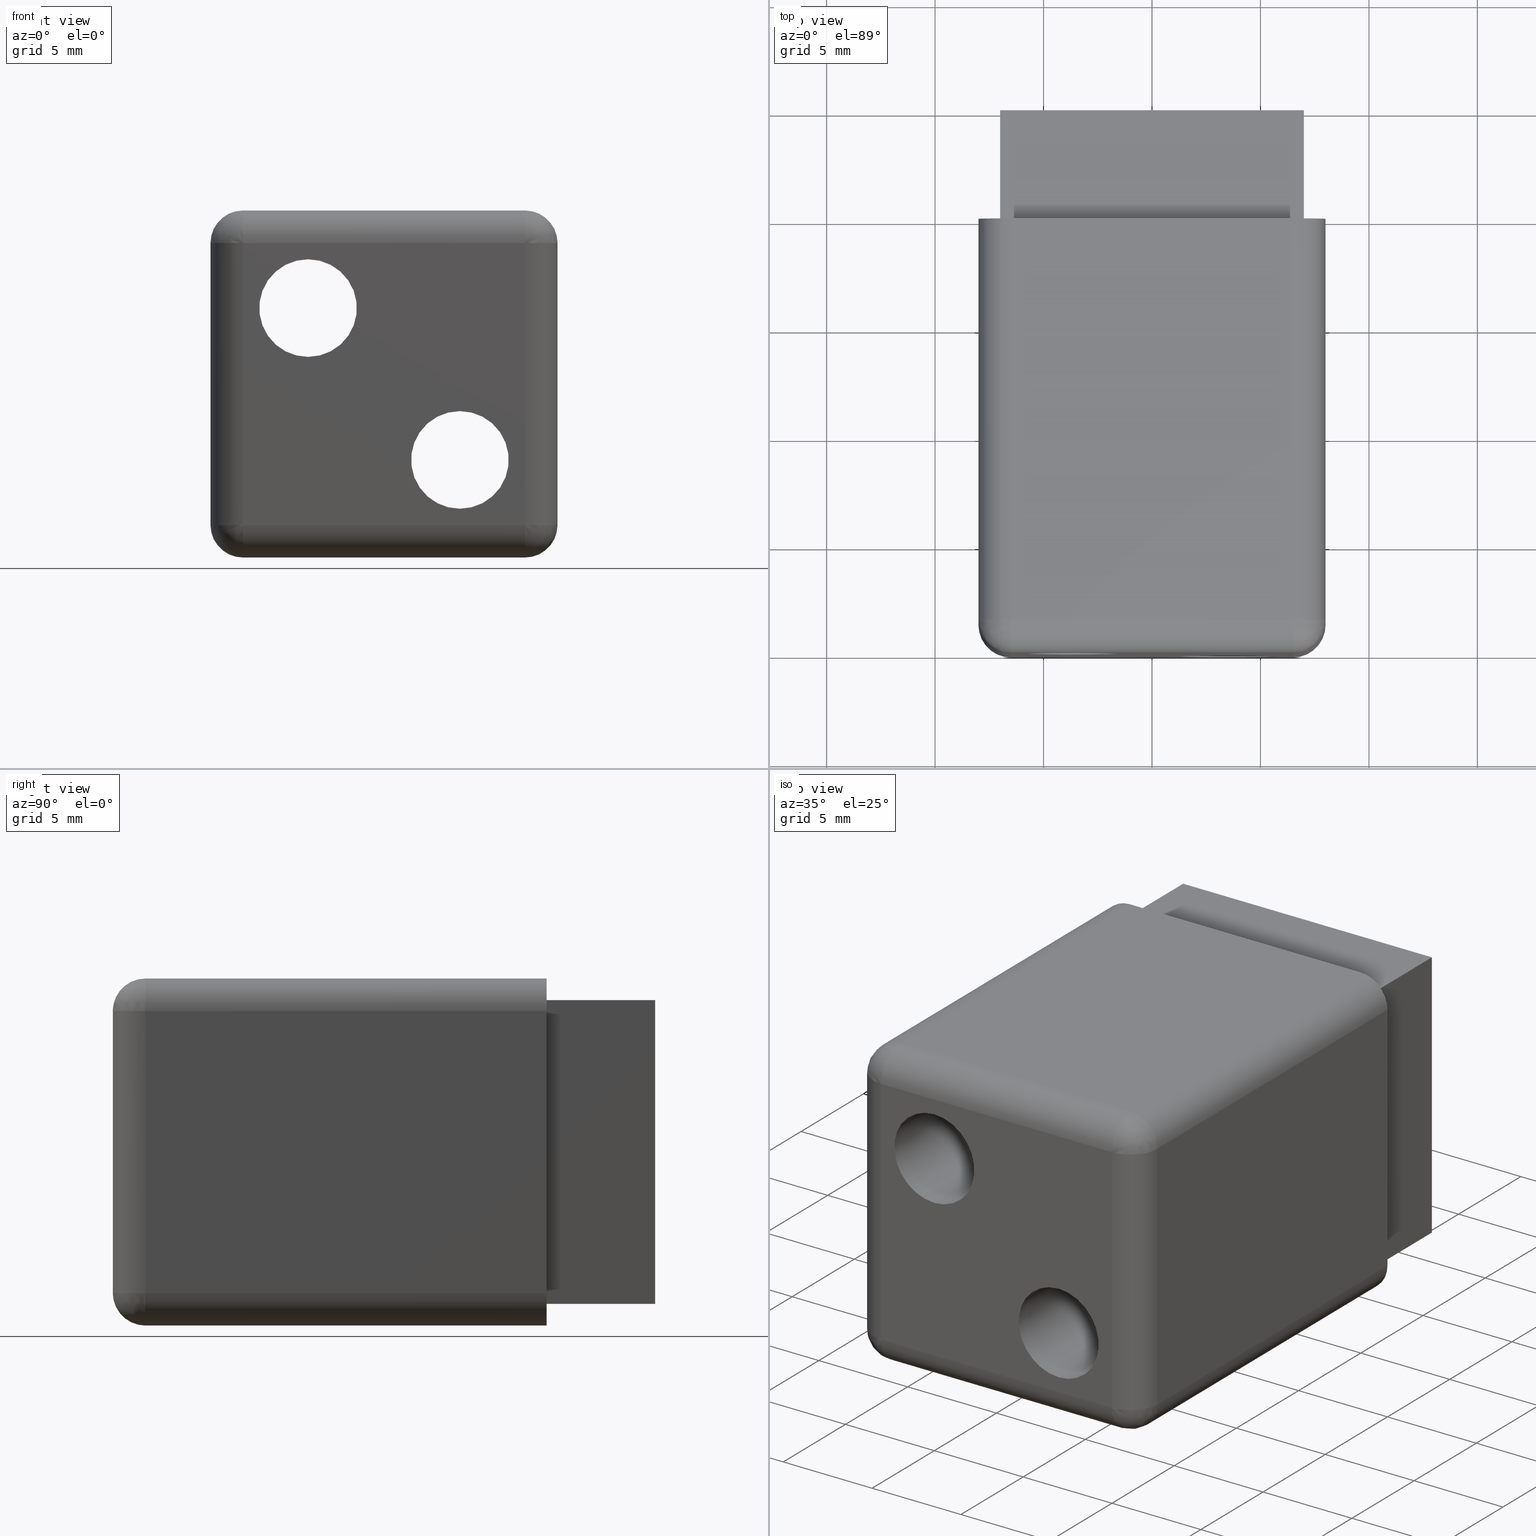
[diagram: canonical four-view strip — front | top / right | iso, engineering-drawing reading convention]
A machine part, canonical four-view strip (front | top / right | iso — engineering-drawing reading convention). The complete STEP part file that produces these views, byte-faithful:
ISO-10303-21;
HEADER;
/****************************************************************
 * Generated by software with PDE/Lib inside                    *
 * PDElib Version v4.4, created Mon 02/23/2004                  *
 * International Technegroup Inc. (www.iti-oh.com)              *
 ****************************************************************/
FILE_DESCRIPTION(('STEP AP203'),'2;1');
FILE_NAME('XF30001G.stp','2011-02-02T11:38:10',(''),(''),'2009.3.110','THINKDESIGN','');
FILE_SCHEMA(('CONFIG_CONTROL_DESIGN'));
ENDSEC;
DATA;
#2=CARTESIAN_POINT('',(3.500000000000004,1.999999990000001,3.499999999999999));
#3=DIRECTION('',(0.0,1.0,0.0));
#4=DIRECTION('',(1.0,0.0,0.0));
#5=AXIS2_PLACEMENT_3D('',#2,#3,#4);
#6=CYLINDRICAL_SURFACE('',#5,2.250000000000001);
#7=CARTESIAN_POINT('',(3.500000000000004,2.000000000000001,1.249999999999999));
#8=VERTEX_POINT('',#7);
#9=CARTESIAN_POINT('',(3.500000000000004,2.000000000000001,5.749999999999998));
#10=VERTEX_POINT('',#9);
#11=CARTESIAN_POINT('',(3.500000000000004,2.000000000000001,3.499999999999999));
#12=DIRECTION('',(0.0,1.0,0.0));
#13=DIRECTION('',(0.0,0.0,1.0));
#14=AXIS2_PLACEMENT_3D('',#11,#12,#13);
#15=CIRCLE('',#14,2.250000000000001);
#16=EDGE_CURVE('',#8,#10,#15,.T.);
#17=ORIENTED_EDGE('',*,*,#16,.F.);
#18=CARTESIAN_POINT('',(3.500000000000004,25.0,1.249999999999999));
#19=VERTEX_POINT('',#18);
#20=CARTESIAN_POINT('',(3.500000000000004,2.000000000000001,1.249999999999999));
#21=DIRECTION('',(0.0,1.0,0.0));
#22=VECTOR('',#21,23.0);
#23=LINE('',#20,#22);
#24=EDGE_CURVE('',#8,#19,#23,.T.);
#25=ORIENTED_EDGE('',*,*,#24,.T.);
#26=CARTESIAN_POINT('',(3.500000000000004,25.0,5.749999999999998));
#27=VERTEX_POINT('',#26);
#28=CARTESIAN_POINT('',(3.500000000000004,25.0,3.499999999999999));
#29=DIRECTION('',(0.0,1.0,0.0));
#30=DIRECTION('',(0.0,0.0,1.0));
#31=AXIS2_PLACEMENT_3D('',#28,#29,#30);
#32=CIRCLE('',#31,2.250000000000001);
#33=EDGE_CURVE('',#19,#27,#32,.T.);
#34=ORIENTED_EDGE('',*,*,#33,.T.);
#35=CARTESIAN_POINT('',(3.500000000000004,2.000000000000001,5.749999999999998));
#36=DIRECTION('',(0.0,1.0,0.0));
#37=VECTOR('',#36,23.0);
#38=LINE('',#35,#37);
#39=EDGE_CURVE('',#10,#27,#38,.T.);
#40=ORIENTED_EDGE('',*,*,#39,.F.);
#41=EDGE_LOOP('',(#17,#25,#34,#40));
#42=FACE_OUTER_BOUND('',#41,.T.);
#43=ADVANCED_FACE('',(#42),#6,.F.);
#44=CARTESIAN_POINT('',(-3.500000000000000,1.999999990000001,-3.500000000000002));
#45=DIRECTION('',(0.0,1.0,0.0));
#46=DIRECTION('',(1.0,0.0,0.0));
#47=AXIS2_PLACEMENT_3D('',#44,#45,#46);
#48=CYLINDRICAL_SURFACE('',#47,2.250000000000000);
#49=CARTESIAN_POINT('',(-3.500000000000000,2.000000000000001,-5.750000000000002));
#50=VERTEX_POINT('',#49);
#51=CARTESIAN_POINT('',(-3.500000000000000,2.000000000000001,-1.250000000000002));
#52=VERTEX_POINT('',#51);
#53=CARTESIAN_POINT('',(-3.500000000000000,2.000000000000001,-3.500000000000001));
#54=DIRECTION('',(0.0,1.0,0.0));
#55=DIRECTION('',(0.0,0.0,1.0));
#56=AXIS2_PLACEMENT_3D('',#53,#54,#55);
#57=CIRCLE('',#56,2.250000000000000);
#58=EDGE_CURVE('',#50,#52,#57,.T.);
#59=ORIENTED_EDGE('',*,*,#58,.F.);
#60=CARTESIAN_POINT('',(-3.500000000000000,25.0,-5.750000000000002));
#61=VERTEX_POINT('',#60);
#62=CARTESIAN_POINT('',(-3.500000000000000,2.000000000000001,-5.750000000000002));
#63=DIRECTION('',(0.0,1.0,0.0));
#64=VECTOR('',#63,23.0);
#65=LINE('',#62,#64);
#66=EDGE_CURVE('',#50,#61,#65,.T.);
#67=ORIENTED_EDGE('',*,*,#66,.T.);
#68=CARTESIAN_POINT('',(-3.500000000000000,25.0,-1.250000000000002));
#69=VERTEX_POINT('',#68);
#70=CARTESIAN_POINT('',(-3.500000000000000,25.0,-3.500000000000001));
#71=DIRECTION('',(0.0,1.0,0.0));
#72=DIRECTION('',(0.0,0.0,1.0));
#73=AXIS2_PLACEMENT_3D('',#70,#71,#72);
#74=CIRCLE('',#73,2.250000000000000);
#75=EDGE_CURVE('',#61,#69,#74,.T.);
#76=ORIENTED_EDGE('',*,*,#75,.T.);
#77=CARTESIAN_POINT('',(-3.500000000000000,2.000000000000001,-1.250000000000002));
#78=DIRECTION('',(0.0,1.0,0.0));
#79=VECTOR('',#78,23.0);
#80=LINE('',#77,#79);
#81=EDGE_CURVE('',#52,#69,#80,.T.);
#82=ORIENTED_EDGE('',*,*,#81,.F.);
#83=EDGE_LOOP('',(#59,#67,#76,#82));
#84=FACE_OUTER_BOUND('',#83,.T.);
#85=ADVANCED_FACE('',(#84),#48,.F.);
#86=CARTESIAN_POINT('',(3.500000000000002,25.000000010000001,-3.500000000000001));
#87=DIRECTION('',(0.0,-1.0,0.0));
#88=DIRECTION('',(1.0,0.0,0.0));
#89=AXIS2_PLACEMENT_3D('',#86,#87,#88);
#90=CYLINDRICAL_SURFACE('',#89,2.250000000000001);
#91=CARTESIAN_POINT('',(3.500000000000002,25.0,-1.250000000000001));
#92=VERTEX_POINT('',#91);
#93=CARTESIAN_POINT('',(3.500000000000002,25.0,-5.750000000000002));
#94=VERTEX_POINT('',#93);
#95=CARTESIAN_POINT('',(3.500000000000002,25.0,-3.500000000000001));
#96=DIRECTION('',(0.0,-1.0,0.0));
#97=DIRECTION('',(0.0,0.0,-1.0));
#98=AXIS2_PLACEMENT_3D('',#95,#96,#97);
#99=CIRCLE('',#98,2.250000000000001);
#100=EDGE_CURVE('',#92,#94,#99,.T.);
#101=ORIENTED_EDGE('',*,*,#100,.F.);
#102=CARTESIAN_POINT('',(3.500000000000002,0.0,-1.250000000000001));
#103=VERTEX_POINT('',#102);
#104=CARTESIAN_POINT('',(3.500000000000002,25.0,-1.250000000000001));
#105=DIRECTION('',(0.0,-1.0,0.0));
#106=VECTOR('',#105,25.0);
#107=LINE('',#104,#106);
#108=EDGE_CURVE('',#92,#103,#107,.T.);
#109=ORIENTED_EDGE('',*,*,#108,.T.);
#110=CARTESIAN_POINT('',(3.500000000000002,0.0,-5.750000000000002));
#111=VERTEX_POINT('',#110);
#112=CARTESIAN_POINT('',(3.500000000000002,0.0,-3.500000000000001));
#113=DIRECTION('',(0.0,-1.0,0.0));
#114=DIRECTION('',(0.0,0.0,-1.0));
#115=AXIS2_PLACEMENT_3D('',#112,#113,#114);
#116=CIRCLE('',#115,2.250000000000001);
#117=EDGE_CURVE('',#103,#111,#116,.T.);
#118=ORIENTED_EDGE('',*,*,#117,.T.);
#119=CARTESIAN_POINT('',(3.500000000000002,25.0,-5.750000000000002));
#120=DIRECTION('',(0.0,-1.0,0.0));
#121=VECTOR('',#120,25.0);
#122=LINE('',#119,#121);
#123=EDGE_CURVE('',#94,#111,#122,.T.);
#124=ORIENTED_EDGE('',*,*,#123,.F.);
#125=EDGE_LOOP('',(#101,#109,#118,#124));
#126=FACE_OUTER_BOUND('',#125,.T.);
#127=ADVANCED_FACE('',(#126),#90,.F.);
#128=CARTESIAN_POINT('',(-3.499999999999997,25.000000010000001,3.499999999999999));
#129=DIRECTION('',(0.0,-1.0,0.0));
#130=DIRECTION('',(1.0,0.0,0.0));
#131=AXIS2_PLACEMENT_3D('',#128,#129,#130);
#132=CYLINDRICAL_SURFACE('',#131,2.250000000000000);
#133=CARTESIAN_POINT('',(-3.499999999999996,25.0,5.749999999999998));
#134=VERTEX_POINT('',#133);
#135=CARTESIAN_POINT('',(-3.499999999999997,25.0,1.249999999999999));
#136=VERTEX_POINT('',#135);
#137=CARTESIAN_POINT('',(-3.499999999999997,25.0,3.499999999999999));
#138=DIRECTION('',(0.0,-1.0,0.0));
#139=DIRECTION('',(0.0,0.0,-1.0));
#140=AXIS2_PLACEMENT_3D('',#137,#138,#139);
#141=CIRCLE('',#140,2.250000000000000);
#142=EDGE_CURVE('',#134,#136,#141,.T.);
#143=ORIENTED_EDGE('',*,*,#142,.F.);
#144=CARTESIAN_POINT('',(-3.499999999999996,0.0,5.749999999999998));
#145=VERTEX_POINT('',#144);
#146=CARTESIAN_POINT('',(-3.499999999999996,25.0,5.749999999999998));
#147=DIRECTION('',(0.0,-1.0,0.0));
#148=VECTOR('',#147,25.0);
#149=LINE('',#146,#148);
#150=EDGE_CURVE('',#134,#145,#149,.T.);
#151=ORIENTED_EDGE('',*,*,#150,.T.);
#152=CARTESIAN_POINT('',(-3.499999999999997,0.0,1.249999999999999));
#153=VERTEX_POINT('',#152);
#154=CARTESIAN_POINT('',(-3.499999999999997,0.0,3.499999999999999));
#155=DIRECTION('',(0.0,-1.0,0.0));
#156=DIRECTION('',(0.0,0.0,-1.0));
#157=AXIS2_PLACEMENT_3D('',#154,#155,#156);
#158=CIRCLE('',#157,2.250000000000000);
#159=EDGE_CURVE('',#145,#153,#158,.T.);
#160=ORIENTED_EDGE('',*,*,#159,.T.);
#161=CARTESIAN_POINT('',(-3.499999999999997,25.0,1.249999999999999));
#162=DIRECTION('',(0.0,-1.0,0.0));
#163=VECTOR('',#162,25.0);
#164=LINE('',#161,#163);
#165=EDGE_CURVE('',#136,#153,#164,.T.);
#166=ORIENTED_EDGE('',*,*,#165,.F.);
#167=EDGE_LOOP('',(#143,#151,#160,#166));
#168=FACE_OUTER_BOUND('',#167,.T.);
#169=ADVANCED_FACE('',(#168),#132,.F.);
#170=CARTESIAN_POINT('',(8.000000000000004,0.574999999999999,-7.150000000000004));
#171=DIRECTION('',(-1.0,0.0,0.0));
#172=DIRECTION('',(0.0,0.0,1.0));
#173=AXIS2_PLACEMENT_3D('',#170,#171,#172);
#174=PLANE('',#173);
#175=CARTESIAN_POINT('',(8.000000000000004,1.500000000000001,6.499999999999997));
#176=VERTEX_POINT('',#175);
#177=CARTESIAN_POINT('',(8.000000000000004,1.500000000000001,-6.500000000000003));
#178=VERTEX_POINT('',#177);
#179=CARTESIAN_POINT('',(8.000000000000004,1.500000000000001,6.499999999999996));
#180=DIRECTION('',(0.0,0.0,-1.0));
#181=VECTOR('',#180,13.0);
#182=LINE('',#179,#181);
#183=EDGE_CURVE('',#176,#178,#182,.T.);
#184=ORIENTED_EDGE('',*,*,#183,.T.);
#185=CARTESIAN_POINT('',(8.000000000000004,20.0,-6.500000000000003));
#186=VERTEX_POINT('',#185);
#187=CARTESIAN_POINT('',(8.000000000000004,1.500000000000000,-6.500000000000003));
#188=DIRECTION('',(0.0,1.0,0.0));
#189=VECTOR('',#188,18.500000000000000);
#190=LINE('',#187,#189);
#191=EDGE_CURVE('',#178,#186,#190,.T.);
#192=ORIENTED_EDGE('',*,*,#191,.T.);
#193=CARTESIAN_POINT('',(8.000000000000004,20.0,6.499999999999997));
#194=VERTEX_POINT('',#193);
#195=CARTESIAN_POINT('',(8.000000000000004,20.0,6.499999999999996));
#196=DIRECTION('',(0.0,0.0,-1.0));
#197=VECTOR('',#196,13.0);
#198=LINE('',#195,#197);
#199=EDGE_CURVE('',#194,#186,#198,.T.);
#200=ORIENTED_EDGE('',*,*,#199,.F.);
#201=CARTESIAN_POINT('',(8.000000000000004,20.0,6.499999999999997));
#202=DIRECTION('',(0.0,-1.0,0.0));
#203=VECTOR('',#202,18.500000000000000);
#204=LINE('',#201,#203);
#205=EDGE_CURVE('',#194,#176,#204,.T.);
#206=ORIENTED_EDGE('',*,*,#205,.T.);
#207=EDGE_LOOP('',(#184,#192,#200,#206));
#208=FACE_OUTER_BOUND('',#207,.T.);
#209=ADVANCED_FACE('',(#208),#174,.F.);
#210=CARTESIAN_POINT('',(-7.150000000000006,0.574999999999999,-8.000000000000004));
#211=DIRECTION('',(0.0,0.0,1.0));
#212=DIRECTION('',(1.0,0.0,0.0));
#213=AXIS2_PLACEMENT_3D('',#210,#211,#212);
#214=PLANE('',#213);
#215=CARTESIAN_POINT('',(6.500000000000003,20.0,-8.000000000000004));
#216=VERTEX_POINT('',#215);
#217=CARTESIAN_POINT('',(-6.500000000000003,20.0,-8.000000000000004));
#218=VERTEX_POINT('',#217);
#219=CARTESIAN_POINT('',(6.500000000000004,20.0,-8.000000000000004));
#220=DIRECTION('',(-1.0,0.0,0.0));
#221=VECTOR('',#220,13.000000000000009);
#222=LINE('',#219,#221);
#223=EDGE_CURVE('',#216,#218,#222,.T.);
#224=ORIENTED_EDGE('',*,*,#223,.F.);
#225=CARTESIAN_POINT('',(6.500000000000003,1.500000000000001,-8.000000000000004));
#226=VERTEX_POINT('',#225);
#227=CARTESIAN_POINT('',(6.500000000000003,20.0,-8.000000000000004));
#228=DIRECTION('',(0.0,-1.0,0.0));
#229=VECTOR('',#228,18.500000000000000);
#230=LINE('',#227,#229);
#231=EDGE_CURVE('',#216,#226,#230,.T.);
#232=ORIENTED_EDGE('',*,*,#231,.T.);
#233=CARTESIAN_POINT('',(-6.500000000000003,1.500000000000001,-8.000000000000004));
#234=VERTEX_POINT('',#233);
#235=CARTESIAN_POINT('',(6.500000000000004,1.500000000000001,-8.000000000000004));
#236=DIRECTION('',(-1.0,0.0,0.0));
#237=VECTOR('',#236,13.000000000000009);
#238=LINE('',#235,#237);
#239=EDGE_CURVE('',#226,#234,#238,.T.);
#240=ORIENTED_EDGE('',*,*,#239,.T.);
#241=CARTESIAN_POINT('',(-6.500000000000003,1.500000000000000,-8.000000000000004));
#242=DIRECTION('',(0.0,1.0,0.0));
#243=VECTOR('',#242,18.500000000000000);
#244=LINE('',#241,#243);
#245=EDGE_CURVE('',#234,#218,#244,.T.);
#246=ORIENTED_EDGE('',*,*,#245,.T.);
#247=EDGE_LOOP('',(#224,#232,#240,#246));
#248=FACE_OUTER_BOUND('',#247,.T.);
#249=ADVANCED_FACE('',(#248),#214,.F.);
#250=CARTESIAN_POINT('',(-8.0,0.574999999999999,7.149999999999997));
#251=DIRECTION('',(1.0,0.0,0.0));
#252=DIRECTION('',(0.0,0.0,-1.0));
#253=AXIS2_PLACEMENT_3D('',#250,#251,#252);
#254=PLANE('',#253);
#255=CARTESIAN_POINT('',(-8.0,20.0,-6.500000000000003));
#256=VERTEX_POINT('',#255);
#257=CARTESIAN_POINT('',(-7.999999999999997,20.0,6.499999999999997));
#258=VERTEX_POINT('',#257);
#259=CARTESIAN_POINT('',(-8.0,20.0,-6.500000000000003));
#260=DIRECTION('',(0.0,0.0,1.0));
#261=VECTOR('',#260,13.0);
#262=LINE('',#259,#261);
#263=EDGE_CURVE('',#256,#258,#262,.T.);
#264=ORIENTED_EDGE('',*,*,#263,.F.);
#265=CARTESIAN_POINT('',(-8.0,1.500000000000001,-6.500000000000003));
#266=VERTEX_POINT('',#265);
#267=CARTESIAN_POINT('',(-8.0,20.0,-6.500000000000003));
#268=DIRECTION('',(0.0,-1.0,0.0));
#269=VECTOR('',#268,18.500000000000000);
#270=LINE('',#267,#269);
#271=EDGE_CURVE('',#256,#266,#270,.T.);
#272=ORIENTED_EDGE('',*,*,#271,.T.);
#273=CARTESIAN_POINT('',(-7.999999999999997,1.500000000000001,6.499999999999997));
#274=VERTEX_POINT('',#273);
#275=CARTESIAN_POINT('',(-8.0,1.500000000000001,-6.500000000000003));
#276=DIRECTION('',(0.0,0.0,1.0));
#277=VECTOR('',#276,13.0);
#278=LINE('',#275,#277);
#279=EDGE_CURVE('',#266,#274,#278,.T.);
#280=ORIENTED_EDGE('',*,*,#279,.T.);
#281=CARTESIAN_POINT('',(-7.999999999999997,1.500000000000000,6.499999999999997));
#282=DIRECTION('',(0.0,1.0,0.0));
#283=VECTOR('',#282,18.500000000000000);
#284=LINE('',#281,#283);
#285=EDGE_CURVE('',#274,#258,#284,.T.);
#286=ORIENTED_EDGE('',*,*,#285,.T.);
#287=EDGE_LOOP('',(#264,#272,#280,#286));
#288=FACE_OUTER_BOUND('',#287,.T.);
#289=ADVANCED_FACE('',(#288),#254,.F.);
#290=CARTESIAN_POINT('',(7.150000000000005,0.574999999999999,7.999999999999997));
#291=DIRECTION('',(0.0,0.0,-1.0));
#292=DIRECTION('',(-1.0,0.0,0.0));
#293=AXIS2_PLACEMENT_3D('',#290,#291,#292);
#294=PLANE('',#293);
#295=CARTESIAN_POINT('',(-6.499999999999997,20.0,7.999999999999997));
#296=VERTEX_POINT('',#295);
#297=CARTESIAN_POINT('',(6.500000000000004,20.0,7.999999999999997));
#298=VERTEX_POINT('',#297);
#299=CARTESIAN_POINT('',(-6.499999999999997,20.0,7.999999999999997));
#300=DIRECTION('',(1.0,0.0,0.0));
#301=VECTOR('',#300,13.000000000000002);
#302=LINE('',#299,#301);
#303=EDGE_CURVE('',#296,#298,#302,.T.);
#304=ORIENTED_EDGE('',*,*,#303,.F.);
#305=CARTESIAN_POINT('',(-6.499999999999997,1.500000000000001,7.999999999999997));
#306=VERTEX_POINT('',#305);
#307=CARTESIAN_POINT('',(-6.499999999999997,20.0,7.999999999999997));
#308=DIRECTION('',(0.0,-1.0,0.0));
#309=VECTOR('',#308,18.500000000000000);
#310=LINE('',#307,#309);
#311=EDGE_CURVE('',#296,#306,#310,.T.);
#312=ORIENTED_EDGE('',*,*,#311,.T.);
#313=CARTESIAN_POINT('',(6.500000000000004,1.500000000000001,7.999999999999997));
#314=VERTEX_POINT('',#313);
#315=CARTESIAN_POINT('',(-6.499999999999997,1.500000000000001,7.999999999999997));
#316=DIRECTION('',(1.0,0.0,0.0));
#317=VECTOR('',#316,13.000000000000002);
#318=LINE('',#315,#317);
#319=EDGE_CURVE('',#306,#314,#318,.T.);
#320=ORIENTED_EDGE('',*,*,#319,.T.);
#321=CARTESIAN_POINT('',(6.500000000000004,1.500000000000000,7.999999999999997));
#322=DIRECTION('',(0.0,1.0,0.0));
#323=VECTOR('',#322,18.500000000000000);
#324=LINE('',#321,#323);
#325=EDGE_CURVE('',#314,#298,#324,.T.);
#326=ORIENTED_EDGE('',*,*,#325,.T.);
#327=EDGE_LOOP('',(#304,#312,#320,#326));
#328=FACE_OUTER_BOUND('',#327,.T.);
#329=ADVANCED_FACE('',(#328),#294,.F.);
#330=CARTESIAN_POINT('',(-7.150000000000004,0.0,-7.150000000000003));
#331=DIRECTION('',(0.0,1.0,0.0));
#332=DIRECTION('',(0.0,0.0,1.0));
#333=AXIS2_PLACEMENT_3D('',#330,#331,#332);
#334=PLANE('',#333);
#335=CARTESIAN_POINT('',(-6.499999999999997,3.330669E-016,6.499999999999997));
#336=VERTEX_POINT('',#335);
#337=CARTESIAN_POINT('',(-6.500000000000001,3.330669E-016,-6.500000000000003));
#338=VERTEX_POINT('',#337);
#339=CARTESIAN_POINT('',(-6.499999999999997,0.0,6.499999999999997));
#340=DIRECTION('',(0.0,0.0,-1.0));
#341=VECTOR('',#340,13.0);
#342=LINE('',#339,#341);
#343=EDGE_CURVE('',#336,#338,#342,.T.);
#344=ORIENTED_EDGE('',*,*,#343,.T.);
#345=CARTESIAN_POINT('',(6.500000000000004,3.330669E-016,-6.500000000000003));
#346=VERTEX_POINT('',#345);
#347=CARTESIAN_POINT('',(-6.500000000000004,0.0,-6.500000000000003));
#348=DIRECTION('',(1.0,0.0,0.0));
#349=VECTOR('',#348,13.000000000000009);
#350=LINE('',#347,#349);
#351=EDGE_CURVE('',#338,#346,#350,.T.);
#352=ORIENTED_EDGE('',*,*,#351,.T.);
#353=CARTESIAN_POINT('',(6.500000000000004,3.330669E-016,6.499999999999997));
#354=VERTEX_POINT('',#353);
#355=CARTESIAN_POINT('',(6.500000000000004,0.0,-6.500000000000003));
#356=DIRECTION('',(0.0,0.0,1.0));
#357=VECTOR('',#356,13.0);
#358=LINE('',#355,#357);
#359=EDGE_CURVE('',#346,#354,#358,.T.);
#360=ORIENTED_EDGE('',*,*,#359,.T.);
#361=CARTESIAN_POINT('',(6.500000000000004,0.0,6.499999999999997));
#362=DIRECTION('',(-1.0,0.0,0.0));
#363=VECTOR('',#362,13.000000000000002);
#364=LINE('',#361,#363);
#365=EDGE_CURVE('',#354,#336,#364,.T.);
#366=ORIENTED_EDGE('',*,*,#365,.T.);
#367=EDGE_LOOP('',(#344,#352,#360,#366));
#368=FACE_OUTER_BOUND('',#367,.T.);
#369=CARTESIAN_POINT('',(3.500000000000002,0.0,-3.500000000000001));
#370=DIRECTION('',(0.0,-1.0,0.0));
#371=DIRECTION('',(0.0,0.0,-1.0));
#372=AXIS2_PLACEMENT_3D('',#369,#370,#371);
#373=CIRCLE('',#372,2.250000000000001);
#374=EDGE_CURVE('',#111,#103,#373,.T.);
#375=ORIENTED_EDGE('',*,*,#374,.F.);
#376=ORIENTED_EDGE('',*,*,#117,.F.);
#377=EDGE_LOOP('',(#375,#376));
#378=FACE_BOUND('',#377,.T.);
#379=CARTESIAN_POINT('',(-3.499999999999997,0.0,3.499999999999999));
#380=DIRECTION('',(0.0,-1.0,0.0));
#381=DIRECTION('',(0.0,0.0,-1.0));
#382=AXIS2_PLACEMENT_3D('',#379,#380,#381);
#383=CIRCLE('',#382,2.250000000000000);
#384=EDGE_CURVE('',#153,#145,#383,.T.);
#385=ORIENTED_EDGE('',*,*,#384,.F.);
#386=ORIENTED_EDGE('',*,*,#159,.F.);
#387=EDGE_LOOP('',(#385,#386));
#388=FACE_BOUND('',#387,.T.);
#389=ADVANCED_FACE('',(#368,#378,#388),#334,.F.);
#390=CARTESIAN_POINT('',(-8.800000000000001,20.0,-8.800000000000004));
#391=DIRECTION('',(0.0,1.0,0.0));
#392=DIRECTION('',(0.0,0.0,1.0));
#393=AXIS2_PLACEMENT_3D('',#390,#391,#392);
#394=PLANE('',#393);
#395=ORIENTED_EDGE('',*,*,#199,.T.);
#396=CARTESIAN_POINT('',(6.500000000000003,20.0,-6.500000000000003));
#397=DIRECTION('',(0.0,1.0,0.0));
#398=DIRECTION('',(0.0,0.0,1.0));
#399=AXIS2_PLACEMENT_3D('',#396,#397,#398);
#400=CIRCLE('',#399,1.500000000000000);
#401=EDGE_CURVE('',#186,#216,#400,.T.);
#402=ORIENTED_EDGE('',*,*,#401,.T.);
#403=ORIENTED_EDGE('',*,*,#223,.T.);
#404=CARTESIAN_POINT('',(-6.500000000000003,20.0,-6.500000000000003));
#405=DIRECTION('',(0.0,1.0,0.0));
#406=DIRECTION('',(0.0,0.0,1.0));
#407=AXIS2_PLACEMENT_3D('',#404,#405,#406);
#408=CIRCLE('',#407,1.500000000000000);
#409=EDGE_CURVE('',#218,#256,#408,.T.);
#410=ORIENTED_EDGE('',*,*,#409,.T.);
#411=ORIENTED_EDGE('',*,*,#263,.T.);
#412=CARTESIAN_POINT('',(-6.499999999999997,20.0,6.499999999999997));
#413=DIRECTION('',(0.0,1.0,0.0));
#414=DIRECTION('',(0.0,0.0,1.0));
#415=AXIS2_PLACEMENT_3D('',#412,#413,#414);
#416=CIRCLE('',#415,1.500000000000000);
#417=EDGE_CURVE('',#258,#296,#416,.T.);
#418=ORIENTED_EDGE('',*,*,#417,.T.);
#419=ORIENTED_EDGE('',*,*,#303,.T.);
#420=CARTESIAN_POINT('',(6.500000000000004,20.0,6.499999999999997));
#421=DIRECTION('',(0.0,1.0,0.0));
#422=DIRECTION('',(0.0,0.0,1.0));
#423=AXIS2_PLACEMENT_3D('',#420,#421,#422);
#424=CIRCLE('',#423,1.500000000000000);
#425=EDGE_CURVE('',#298,#194,#424,.T.);
#426=ORIENTED_EDGE('',*,*,#425,.T.);
#427=EDGE_LOOP('',(#395,#402,#403,#410,#411,#418,#419,#426));
#428=FACE_OUTER_BOUND('',#427,.T.);
#429=CARTESIAN_POINT('',(-7.0,20.0,-7.000000000000003));
#430=VERTEX_POINT('',#429);
#431=CARTESIAN_POINT('',(-6.999999999999997,20.0,6.999999999999997));
#432=VERTEX_POINT('',#431);
#433=CARTESIAN_POINT('',(-7.0,20.0,-7.000000000000003));
#434=DIRECTION('',(0.0,0.0,1.0));
#435=VECTOR('',#434,14.0);
#436=LINE('',#433,#435);
#437=EDGE_CURVE('',#430,#432,#436,.T.);
#438=ORIENTED_EDGE('',*,*,#437,.F.);
#439=CARTESIAN_POINT('',(7.000000000000003,20.0,-6.999999999999997));
#440=VERTEX_POINT('',#439);
#441=CARTESIAN_POINT('',(7.000000000000003,20.0,-7.000000000000003));
#442=DIRECTION('',(-1.0,0.0,0.0));
#443=VECTOR('',#442,14.000000000000004);
#444=LINE('',#441,#443);
#445=EDGE_CURVE('',#440,#430,#444,.T.);
#446=ORIENTED_EDGE('',*,*,#445,.F.);
#447=CARTESIAN_POINT('',(7.000000000000003,20.0,6.999999999999997));
#448=VERTEX_POINT('',#447);
#449=CARTESIAN_POINT('',(7.000000000000003,20.0,6.999999999999997));
#450=DIRECTION('',(0.0,0.0,-1.0));
#451=VECTOR('',#450,13.999999999999995);
#452=LINE('',#449,#451);
#453=EDGE_CURVE('',#448,#440,#452,.T.);
#454=ORIENTED_EDGE('',*,*,#453,.F.);
#455=CARTESIAN_POINT('',(-6.999999999999997,20.0,6.999999999999997));
#456=DIRECTION('',(1.0,0.0,0.0));
#457=VECTOR('',#456,14.0);
#458=LINE('',#455,#457);
#459=EDGE_CURVE('',#432,#448,#458,.T.);
#460=ORIENTED_EDGE('',*,*,#459,.F.);
#461=EDGE_LOOP('',(#438,#446,#454,#460));
#462=FACE_BOUND('',#461,.T.);
#463=ADVANCED_FACE('',(#428,#462),#394,.T.);
#464=CARTESIAN_POINT('',(-7.699999999999998,19.750000000000000,6.999999999999997));
#465=DIRECTION('',(0.0,0.0,1.0));
#466=DIRECTION('',(1.0,0.0,0.0));
#467=AXIS2_PLACEMENT_3D('',#464,#465,#466);
#468=PLANE('',#467);
#469=CARTESIAN_POINT('',(-6.999999999999997,25.0,6.999999999999997));
#470=VERTEX_POINT('',#469);
#471=CARTESIAN_POINT('',(7.000000000000003,25.0,6.999999999999997));
#472=VERTEX_POINT('',#471);
#473=CARTESIAN_POINT('',(-6.999999999999997,25.0,6.999999999999997));
#474=DIRECTION('',(1.0,0.0,0.0));
#475=VECTOR('',#474,14.0);
#476=LINE('',#473,#475);
#477=EDGE_CURVE('',#470,#472,#476,.T.);
#478=ORIENTED_EDGE('',*,*,#477,.F.);
#479=CARTESIAN_POINT('',(-6.999999999999997,20.0,6.999999999999997));
#480=DIRECTION('',(0.0,1.0,0.0));
#481=VECTOR('',#480,5.0);
#482=LINE('',#479,#481);
#483=EDGE_CURVE('',#432,#470,#482,.T.);
#484=ORIENTED_EDGE('',*,*,#483,.F.);
#485=ORIENTED_EDGE('',*,*,#459,.T.);
#486=CARTESIAN_POINT('',(7.000000000000003,20.0,6.999999999999997));
#487=DIRECTION('',(0.0,1.0,0.0));
#488=VECTOR('',#487,5.0);
#489=LINE('',#486,#488);
#490=EDGE_CURVE('',#448,#472,#489,.T.);
#491=ORIENTED_EDGE('',*,*,#490,.T.);
#492=EDGE_LOOP('',(#478,#484,#485,#491));
#493=FACE_OUTER_BOUND('',#492,.T.);
#494=ADVANCED_FACE('',(#493),#468,.T.);
#495=CARTESIAN_POINT('',(-7.0,19.750000000000000,-7.700000000000003));
#496=DIRECTION('',(-1.0,0.0,0.0));
#497=DIRECTION('',(0.0,0.0,1.0));
#498=AXIS2_PLACEMENT_3D('',#495,#496,#497);
#499=PLANE('',#498);
#500=CARTESIAN_POINT('',(-7.0,25.0,-7.000000000000003));
#501=VERTEX_POINT('',#500);
#502=CARTESIAN_POINT('',(-7.0,25.0,-7.000000000000003));
#503=DIRECTION('',(0.0,0.0,1.0));
#504=VECTOR('',#503,14.0);
#505=LINE('',#502,#504);
#506=EDGE_CURVE('',#501,#470,#505,.T.);
#507=ORIENTED_EDGE('',*,*,#506,.F.);
#508=CARTESIAN_POINT('',(-7.0,20.0,-7.000000000000003));
#509=DIRECTION('',(0.0,1.0,0.0));
#510=VECTOR('',#509,5.0);
#511=LINE('',#508,#510);
#512=EDGE_CURVE('',#430,#501,#511,.T.);
#513=ORIENTED_EDGE('',*,*,#512,.F.);
#514=ORIENTED_EDGE('',*,*,#437,.T.);
#515=ORIENTED_EDGE('',*,*,#483,.T.);
#516=EDGE_LOOP('',(#507,#513,#514,#515));
#517=FACE_OUTER_BOUND('',#516,.T.);
#518=ADVANCED_FACE('',(#517),#499,.T.);
#519=CARTESIAN_POINT('',(7.700000000000003,19.750000000000000,-7.000000000000003));
#520=DIRECTION('',(0.0,0.0,-1.0));
#521=DIRECTION('',(-1.0,0.0,0.0));
#522=AXIS2_PLACEMENT_3D('',#519,#520,#521);
#523=PLANE('',#522);
#524=CARTESIAN_POINT('',(7.000000000000003,25.0,-7.000000000000003));
#525=VERTEX_POINT('',#524);
#526=CARTESIAN_POINT('',(7.000000000000003,25.0,-7.000000000000003));
#527=DIRECTION('',(-1.0,0.0,0.0));
#528=VECTOR('',#527,14.000000000000004);
#529=LINE('',#526,#528);
#530=EDGE_CURVE('',#525,#501,#529,.T.);
#531=ORIENTED_EDGE('',*,*,#530,.F.);
#532=CARTESIAN_POINT('',(7.000000000000003,20.0,-7.000000000000003));
#533=DIRECTION('',(0.0,1.0,0.0));
#534=VECTOR('',#533,5.0);
#535=LINE('',#532,#534);
#536=EDGE_CURVE('',#440,#525,#535,.T.);
#537=ORIENTED_EDGE('',*,*,#536,.F.);
#538=ORIENTED_EDGE('',*,*,#445,.T.);
#539=ORIENTED_EDGE('',*,*,#512,.T.);
#540=EDGE_LOOP('',(#531,#537,#538,#539));
#541=FACE_OUTER_BOUND('',#540,.T.);
#542=ADVANCED_FACE('',(#541),#523,.T.);
#543=CARTESIAN_POINT('',(7.000000000000003,19.750000000000000,7.699999999999998));
#544=DIRECTION('',(1.0,0.0,0.0));
#545=DIRECTION('',(0.0,0.0,-1.0));
#546=AXIS2_PLACEMENT_3D('',#543,#544,#545);
#547=PLANE('',#546);
#548=CARTESIAN_POINT('',(7.000000000000003,25.0,6.999999999999997));
#549=DIRECTION('',(0.0,0.0,-1.0));
#550=VECTOR('',#549,14.0);
#551=LINE('',#548,#550);
#552=EDGE_CURVE('',#472,#525,#551,.T.);
#553=ORIENTED_EDGE('',*,*,#552,.F.);
#554=ORIENTED_EDGE('',*,*,#490,.F.);
#555=ORIENTED_EDGE('',*,*,#453,.T.);
#556=ORIENTED_EDGE('',*,*,#536,.T.);
#557=EDGE_LOOP('',(#553,#554,#555,#556));
#558=FACE_OUTER_BOUND('',#557,.T.);
#559=ADVANCED_FACE('',(#558),#547,.T.);
#560=CARTESIAN_POINT('',(-7.699999999999999,25.0,-7.700000000000002));
#561=DIRECTION('',(0.0,1.0,0.0));
#562=DIRECTION('',(0.0,0.0,1.0));
#563=AXIS2_PLACEMENT_3D('',#560,#561,#562);
#564=PLANE('',#563);
#565=ORIENTED_EDGE('',*,*,#506,.T.);
#566=ORIENTED_EDGE('',*,*,#477,.T.);
#567=ORIENTED_EDGE('',*,*,#552,.T.);
#568=ORIENTED_EDGE('',*,*,#530,.T.);
#569=EDGE_LOOP('',(#565,#566,#567,#568));
#570=FACE_OUTER_BOUND('',#569,.T.);
#571=CARTESIAN_POINT('',(-3.500000000000000,25.0,-3.500000000000001));
#572=DIRECTION('',(0.0,1.0,0.0));
#573=DIRECTION('',(0.0,0.0,1.0));
#574=AXIS2_PLACEMENT_3D('',#571,#572,#573);
#575=CIRCLE('',#574,2.250000000000000);
#576=EDGE_CURVE('',#69,#61,#575,.T.);
#577=ORIENTED_EDGE('',*,*,#576,.F.);
#578=ORIENTED_EDGE('',*,*,#75,.F.);
#579=EDGE_LOOP('',(#577,#578));
#580=FACE_BOUND('',#579,.T.);
#581=CARTESIAN_POINT('',(3.500000000000002,25.0,-3.500000000000001));
#582=DIRECTION('',(0.0,-1.0,0.0));
#583=DIRECTION('',(0.0,0.0,-1.0));
#584=AXIS2_PLACEMENT_3D('',#581,#582,#583);
#585=CIRCLE('',#584,2.250000000000001);
#586=EDGE_CURVE('',#94,#92,#585,.T.);
#587=ORIENTED_EDGE('',*,*,#586,.T.);
#588=ORIENTED_EDGE('',*,*,#100,.T.);
#589=EDGE_LOOP('',(#587,#588));
#590=FACE_BOUND('',#589,.T.);
#591=CARTESIAN_POINT('',(-3.499999999999997,25.0,3.499999999999999));
#592=DIRECTION('',(0.0,-1.0,0.0));
#593=DIRECTION('',(0.0,0.0,-1.0));
#594=AXIS2_PLACEMENT_3D('',#591,#592,#593);
#595=CIRCLE('',#594,2.250000000000000);
#596=EDGE_CURVE('',#136,#134,#595,.T.);
#597=ORIENTED_EDGE('',*,*,#596,.T.);
#598=ORIENTED_EDGE('',*,*,#142,.T.);
#599=EDGE_LOOP('',(#597,#598));
#600=FACE_BOUND('',#599,.T.);
#601=CARTESIAN_POINT('',(3.500000000000004,25.0,3.499999999999999));
#602=DIRECTION('',(0.0,1.0,0.0));
#603=DIRECTION('',(0.0,0.0,1.0));
#604=AXIS2_PLACEMENT_3D('',#601,#602,#603);
#605=CIRCLE('',#604,2.250000000000001);
#606=EDGE_CURVE('',#27,#19,#605,.T.);
#607=ORIENTED_EDGE('',*,*,#606,.F.);
#608=ORIENTED_EDGE('',*,*,#33,.F.);
#609=EDGE_LOOP('',(#607,#608));
#610=FACE_BOUND('',#609,.T.);
#611=ADVANCED_FACE('',(#570,#580,#590,#600,#610),#564,.T.);
#612=CARTESIAN_POINT('',(-3.499999999999997,25.000000010000001,3.499999999999999));
#613=DIRECTION('',(0.0,-1.0,0.0));
#614=DIRECTION('',(-1.0,0.0,0.0));
#615=AXIS2_PLACEMENT_3D('',#612,#613,#614);
#616=CYLINDRICAL_SURFACE('',#615,2.250000000000000);
#617=ORIENTED_EDGE('',*,*,#150,.F.);
#618=ORIENTED_EDGE('',*,*,#596,.F.);
#619=ORIENTED_EDGE('',*,*,#165,.T.);
#620=ORIENTED_EDGE('',*,*,#384,.T.);
#621=EDGE_LOOP('',(#617,#618,#619,#620));
#622=FACE_OUTER_BOUND('',#621,.T.);
#623=ADVANCED_FACE('',(#622),#616,.F.);
#624=CARTESIAN_POINT('',(3.500000000000002,25.000000010000001,-3.500000000000001));
#625=DIRECTION('',(0.0,-1.0,0.0));
#626=DIRECTION('',(-1.0,0.0,0.0));
#627=AXIS2_PLACEMENT_3D('',#624,#625,#626);
#628=CYLINDRICAL_SURFACE('',#627,2.250000000000001);
#629=ORIENTED_EDGE('',*,*,#108,.F.);
#630=ORIENTED_EDGE('',*,*,#586,.F.);
#631=ORIENTED_EDGE('',*,*,#123,.T.);
#632=ORIENTED_EDGE('',*,*,#374,.T.);
#633=EDGE_LOOP('',(#629,#630,#631,#632));
#634=FACE_OUTER_BOUND('',#633,.T.);
#635=ADVANCED_FACE('',(#634),#628,.F.);
#636=CARTESIAN_POINT('',(-3.500000000000000,1.999999990000001,-3.500000000000001));
#637=DIRECTION('',(0.0,1.0,0.0));
#638=DIRECTION('',(-1.0,0.0,0.0));
#639=AXIS2_PLACEMENT_3D('',#636,#637,#638);
#640=CYLINDRICAL_SURFACE('',#639,2.250000000000000);
#641=ORIENTED_EDGE('',*,*,#66,.F.);
#642=CARTESIAN_POINT('',(-3.500000000000000,2.000000000000001,-3.500000000000001));
#643=DIRECTION('',(0.0,1.0,0.0));
#644=DIRECTION('',(0.0,0.0,1.0));
#645=AXIS2_PLACEMENT_3D('',#642,#643,#644);
#646=CIRCLE('',#645,2.250000000000000);
#647=EDGE_CURVE('',#52,#50,#646,.T.);
#648=ORIENTED_EDGE('',*,*,#647,.F.);
#649=ORIENTED_EDGE('',*,*,#81,.T.);
#650=ORIENTED_EDGE('',*,*,#576,.T.);
#651=EDGE_LOOP('',(#641,#648,#649,#650));
#652=FACE_OUTER_BOUND('',#651,.T.);
#653=ADVANCED_FACE('',(#652),#640,.F.);
#654=CARTESIAN_POINT('',(-5.975000000000000,2.000000000000001,-5.975000000000001));
#655=DIRECTION('',(0.0,1.0,0.0));
#656=DIRECTION('',(0.0,0.0,1.0));
#657=AXIS2_PLACEMENT_3D('',#654,#655,#656);
#658=PLANE('',#657);
#659=ORIENTED_EDGE('',*,*,#647,.T.);
#660=ORIENTED_EDGE('',*,*,#58,.T.);
#661=EDGE_LOOP('',(#659,#660));
#662=FACE_OUTER_BOUND('',#661,.T.);
#663=ADVANCED_FACE('',(#662),#658,.T.);
#664=CARTESIAN_POINT('',(3.500000000000005,1.999999990000001,3.499999999999999));
#665=DIRECTION('',(0.0,1.0,0.0));
#666=DIRECTION('',(-1.0,0.0,0.0));
#667=AXIS2_PLACEMENT_3D('',#664,#665,#666);
#668=CYLINDRICAL_SURFACE('',#667,2.250000000000001);
#669=ORIENTED_EDGE('',*,*,#24,.F.);
#670=CARTESIAN_POINT('',(3.500000000000004,2.000000000000001,3.499999999999999));
#671=DIRECTION('',(0.0,1.0,0.0));
#672=DIRECTION('',(0.0,0.0,1.0));
#673=AXIS2_PLACEMENT_3D('',#670,#671,#672);
#674=CIRCLE('',#673,2.250000000000001);
#675=EDGE_CURVE('',#10,#8,#674,.T.);
#676=ORIENTED_EDGE('',*,*,#675,.F.);
#677=ORIENTED_EDGE('',*,*,#39,.T.);
#678=ORIENTED_EDGE('',*,*,#606,.T.);
#679=EDGE_LOOP('',(#669,#676,#677,#678));
#680=FACE_OUTER_BOUND('',#679,.T.);
#681=ADVANCED_FACE('',(#680),#668,.F.);
#682=CARTESIAN_POINT('',(1.025000000000004,2.000000000000001,1.024999999999998));
#683=DIRECTION('',(0.0,1.0,0.0));
#684=DIRECTION('',(0.0,0.0,1.0));
#685=AXIS2_PLACEMENT_3D('',#682,#683,#684);
#686=PLANE('',#685);
#687=ORIENTED_EDGE('',*,*,#675,.T.);
#688=ORIENTED_EDGE('',*,*,#16,.T.);
#689=EDGE_LOOP('',(#687,#688));
#690=FACE_OUTER_BOUND('',#689,.T.);
#691=ADVANCED_FACE('',(#690),#686,.T.);
#692=CARTESIAN_POINT('',(6.500000000000004,20.000000010000001,6.499999999999997));
#693=DIRECTION('',(0.0,-1.0,0.0));
#694=DIRECTION('',(0.0,0.0,-1.0));
#695=AXIS2_PLACEMENT_3D('',#692,#693,#694);
#696=CYLINDRICAL_SURFACE('',#695,1.500000000000000);
#697=ORIENTED_EDGE('',*,*,#425,.F.);
#698=ORIENTED_EDGE('',*,*,#325,.F.);
#699=CARTESIAN_POINT('',(6.500000000000004,1.500000000000001,6.499999999999997));
#700=DIRECTION('',(0.0,-1.0,0.0));
#701=DIRECTION('',(0.0,0.0,-1.0));
#702=AXIS2_PLACEMENT_3D('',#699,#700,#701);
#703=CIRCLE('',#702,1.500000000000000);
#704=EDGE_CURVE('',#176,#314,#703,.T.);
#705=ORIENTED_EDGE('',*,*,#704,.F.);
#706=ORIENTED_EDGE('',*,*,#205,.F.);
#707=EDGE_LOOP('',(#697,#698,#705,#706));
#708=FACE_OUTER_BOUND('',#707,.T.);
#709=ADVANCED_FACE('',(#708),#696,.T.);
#710=CARTESIAN_POINT('',(-6.499999999999997,20.000000010000001,6.499999999999997));
#711=DIRECTION('',(0.0,-1.0,0.0));
#712=DIRECTION('',(0.0,0.0,-1.0));
#713=AXIS2_PLACEMENT_3D('',#710,#711,#712);
#714=CYLINDRICAL_SURFACE('',#713,1.500000000000000);
#715=ORIENTED_EDGE('',*,*,#417,.F.);
#716=ORIENTED_EDGE('',*,*,#285,.F.);
#717=CARTESIAN_POINT('',(-6.499999999999997,1.500000000000001,6.499999999999997));
#718=DIRECTION('',(0.0,-1.0,0.0));
#719=DIRECTION('',(0.0,0.0,-1.0));
#720=AXIS2_PLACEMENT_3D('',#717,#718,#719);
#721=CIRCLE('',#720,1.500000000000000);
#722=EDGE_CURVE('',#306,#274,#721,.T.);
#723=ORIENTED_EDGE('',*,*,#722,.F.);
#724=ORIENTED_EDGE('',*,*,#311,.F.);
#725=EDGE_LOOP('',(#715,#716,#723,#724));
#726=FACE_OUTER_BOUND('',#725,.T.);
#727=ADVANCED_FACE('',(#726),#714,.T.);
#728=CARTESIAN_POINT('',(-6.500000009999997,1.500000000000001,6.499999999999997));
#729=DIRECTION('',(1.0,0.0,0.0));
#730=DIRECTION('',(0.0,0.0,-1.0));
#731=AXIS2_PLACEMENT_3D('',#728,#729,#730);
#732=CYLINDRICAL_SURFACE('',#731,1.500000000000000);
#733=CARTESIAN_POINT('',(6.500000000000004,1.500000000000001,6.499999999999997));
#734=DIRECTION('',(1.0,0.0,0.0));
#735=DIRECTION('',(0.0,0.0,-1.0));
#736=AXIS2_PLACEMENT_3D('',#733,#734,#735);
#737=CIRCLE('',#736,1.500000000000000);
#738=EDGE_CURVE('',#314,#354,#737,.T.);
#739=ORIENTED_EDGE('',*,*,#738,.F.);
#740=ORIENTED_EDGE('',*,*,#319,.F.);
#741=CARTESIAN_POINT('',(-6.499999999999997,1.500000000000000,6.499999999999997));
#742=DIRECTION('',(-1.0,0.0,0.0));
#743=DIRECTION('',(0.0,0.0,1.0));
#744=AXIS2_PLACEMENT_3D('',#741,#742,#743);
#745=CIRCLE('',#744,1.500000000000000);
#746=EDGE_CURVE('',#336,#306,#745,.T.);
#747=ORIENTED_EDGE('',*,*,#746,.F.);
#748=ORIENTED_EDGE('',*,*,#365,.F.);
#749=EDGE_LOOP('',(#739,#740,#747,#748));
#750=FACE_OUTER_BOUND('',#749,.T.);
#751=ADVANCED_FACE('',(#750),#732,.T.);
#752=CARTESIAN_POINT('',(6.500000000000007,6.000000E-016,6.499999957573592));
#753=CARTESIAN_POINT('',(6.499999982426411,6.000000E-016,6.499999957573590));
#754=CARTESIAN_POINT('',(6.499999970000004,6.000000E-016,6.499999969999998));
#755=CARTESIAN_POINT('',(6.499999957573596,6.000000E-016,6.499999982426406));
#756=CARTESIAN_POINT('',(6.499999957573597,6.000000E-016,6.500000000000000));
#757=CARTESIAN_POINT('',(6.499999900588684,-0.000000042426407,7.999999999999994));
#758=CARTESIAN_POINT('',(7.121320302382128,-0.000000042426407,8.000000041177513));
#759=CARTESIAN_POINT('',(7.560660171779825,-0.000000042426407,7.560660171779819));
#760=CARTESIAN_POINT('',(8.000000041177579,-0.000000042426407,7.121320302382064));
#761=CARTESIAN_POINT('',(8.0,-0.000000042426407,6.499999900588539));
#762=CARTESIAN_POINT('',(6.499999900588684,1.500000042426408,7.999999999999992));
#763=CARTESIAN_POINT('',(7.121320302382130,1.500000042426408,8.000000041177513));
#764=CARTESIAN_POINT('',(7.560660171779825,1.500000042426408,7.560660171779819));
#765=CARTESIAN_POINT('',(8.000000041177579,1.500000042426408,7.121320302382067));
#766=CARTESIAN_POINT('',(8.000000000000002,1.500000042426408,6.499999900588541));
#774=(BOUNDED_SURFACE()B_SPLINE_SURFACE(2,2,((#752,#757,#762),(#753,#758,#763),(#754,#759,#764),(#755,#760,#765),(#756,#761,#766)),.UNSPECIFIED.,.F.,.F.,.U.)B_SPLINE_SURFACE_WITH_KNOTS((3,2,3),(3,3),(0.374999989999994,0.500000000000000,0.625000010000020),(-1.000000E-008,0.500000010000000),.UNSPECIFIED.)GEOMETRIC_REPRESENTATION_ITEM()RATIONAL_B_SPLINE_SURFACE(((0.853553400593275,0.603553385593275,0.853553380593275),(0.853553388877538,0.603553377308997,0.853553368877538),(1.000000011715729,0.707106775328683,0.999999988284271),(0.853553388877521,0.603553377308986,0.853553368877521),(0.853553400593275,0.603553385593275,0.853553380593275)))REPRESENTATION_ITEM('')SURFACE());
#775=CARTESIAN_POINT('',(6.500000000000004,1.500000000000000,6.499999999999997));
#776=DIRECTION('',(0.0,0.0,-1.0));
#777=DIRECTION('',(1.0,0.0,0.0));
#778=AXIS2_PLACEMENT_3D('',#775,#776,#777);
#779=CIRCLE('',#778,1.500000000000000);
#780=EDGE_CURVE('',#176,#354,#779,.T.);
#781=ORIENTED_EDGE('',*,*,#780,.F.);
#782=ORIENTED_EDGE('',*,*,#704,.T.);
#783=ORIENTED_EDGE('',*,*,#738,.T.);
#784=EDGE_LOOP('',(#781,#782,#783));
#785=FACE_OUTER_BOUND('',#784,.T.);
#786=ADVANCED_FACE('',(#785),#774,.T.);
#787=CARTESIAN_POINT('',(-6.499999957573590,6.000000E-016,6.499999999999999));
#788=CARTESIAN_POINT('',(-6.499999957573590,6.000000E-016,6.499999957573590));
#789=CARTESIAN_POINT('',(-6.499999999999999,6.000000E-016,6.499999957573591));
#790=CARTESIAN_POINT('',(-7.999999999999996,-0.000000042426407,6.499999915147180));
#791=CARTESIAN_POINT('',(-7.999999999999996,-0.000000042426407,7.999999999999996));
#792=CARTESIAN_POINT('',(-6.499999915147116,-0.000000042426407,7.999999999999996));
#793=CARTESIAN_POINT('',(-7.999999999999995,1.500000042426408,6.499999915147184));
#794=CARTESIAN_POINT('',(-7.999999999999996,1.500000042426409,7.999999999999996));
#795=CARTESIAN_POINT('',(-6.499999915147118,1.500000042426408,7.999999999999994));
#803=(BOUNDED_SURFACE()B_SPLINE_SURFACE(2,2,((#787,#790,#793),(#788,#791,#794),(#789,#792,#795)),.UNSPECIFIED.,.F.,.F.,.U.)B_SPLINE_SURFACE_WITH_KNOTS((3,3),(3,3),(0.499999990000000,0.750000010000008),(-1.000000E-008,0.500000010000000),.UNSPECIFIED.)GEOMETRIC_REPRESENTATION_ITEM()RATIONAL_B_SPLINE_SURFACE(((0.999999988284272,0.707106758760142,0.999999964852815),(0.707106789470819,0.499999995857865,0.707106772902276),(0.999999988284254,0.707106758760129,0.999999964852797)))REPRESENTATION_ITEM('')SURFACE());
#804=ORIENTED_EDGE('',*,*,#746,.T.);
#805=ORIENTED_EDGE('',*,*,#722,.T.);
#806=CARTESIAN_POINT('',(-6.499999999999997,1.500000000000001,6.499999999999997));
#807=DIRECTION('',(0.0,0.0,-1.0));
#808=DIRECTION('',(1.0,0.0,0.0));
#809=AXIS2_PLACEMENT_3D('',#806,#807,#808);
#810=CIRCLE('',#809,1.500000000000000);
#811=EDGE_CURVE('',#336,#274,#810,.T.);
#812=ORIENTED_EDGE('',*,*,#811,.F.);
#813=EDGE_LOOP('',(#804,#805,#812));
#814=FACE_OUTER_BOUND('',#813,.T.);
#815=ADVANCED_FACE('',(#814),#803,.T.);
#816=CARTESIAN_POINT('',(6.500000000000003,1.500000000000001,6.500000009999997));
#817=DIRECTION('',(0.0,0.0,-1.0));
#818=DIRECTION('',(-1.0,0.0,0.0));
#819=AXIS2_PLACEMENT_3D('',#816,#817,#818);
#820=CYLINDRICAL_SURFACE('',#819,1.500000000000000);
#821=ORIENTED_EDGE('',*,*,#780,.T.);
#822=ORIENTED_EDGE('',*,*,#359,.F.);
#823=CARTESIAN_POINT('',(6.500000000000003,1.500000000000001,-6.500000000000003));
#824=DIRECTION('',(0.0,0.0,-1.0));
#825=DIRECTION('',(-1.0,0.0,0.0));
#826=AXIS2_PLACEMENT_3D('',#823,#824,#825);
#827=CIRCLE('',#826,1.500000000000000);
#828=EDGE_CURVE('',#178,#346,#827,.T.);
#829=ORIENTED_EDGE('',*,*,#828,.F.);
#830=ORIENTED_EDGE('',*,*,#183,.F.);
#831=EDGE_LOOP('',(#821,#822,#829,#830));
#832=FACE_OUTER_BOUND('',#831,.T.);
#833=ADVANCED_FACE('',(#832),#820,.T.);
#834=CARTESIAN_POINT('',(6.500000000000004,20.000000010000001,-6.500000000000003));
#835=DIRECTION('',(0.0,-1.0,0.0));
#836=DIRECTION('',(-0.707106781186548,0.0,0.707106781186547));
#837=AXIS2_PLACEMENT_3D('',#834,#835,#836);
#838=CYLINDRICAL_SURFACE('',#837,1.500000000000000);
#839=ORIENTED_EDGE('',*,*,#401,.F.);
#840=ORIENTED_EDGE('',*,*,#191,.F.);
#841=CARTESIAN_POINT('',(6.500000000000003,1.500000000000001,-6.500000000000003));
#842=DIRECTION('',(0.0,-1.0,0.0));
#843=DIRECTION('',(0.0,0.0,-1.0));
#844=AXIS2_PLACEMENT_3D('',#841,#842,#843);
#845=CIRCLE('',#844,1.500000000000000);
#846=EDGE_CURVE('',#226,#178,#845,.T.);
#847=ORIENTED_EDGE('',*,*,#846,.F.);
#848=ORIENTED_EDGE('',*,*,#231,.F.);
#849=EDGE_LOOP('',(#839,#840,#847,#848));
#850=FACE_OUTER_BOUND('',#849,.T.);
#851=ADVANCED_FACE('',(#850),#838,.T.);
#852=CARTESIAN_POINT('',(-6.500000000000004,20.000000010000001,-6.500000000000003));
#853=DIRECTION('',(0.0,-1.0,0.0));
#854=DIRECTION('',(0.707106781186548,0.0,0.707106781186547));
#855=AXIS2_PLACEMENT_3D('',#852,#853,#854);
#856=CYLINDRICAL_SURFACE('',#855,1.500000000000000);
#857=ORIENTED_EDGE('',*,*,#409,.F.);
#858=ORIENTED_EDGE('',*,*,#245,.F.);
#859=CARTESIAN_POINT('',(-6.500000000000003,1.500000000000001,-6.500000000000003));
#860=DIRECTION('',(0.0,-1.0,0.0));
#861=DIRECTION('',(0.0,0.0,-1.0));
#862=AXIS2_PLACEMENT_3D('',#859,#860,#861);
#863=CIRCLE('',#862,1.500000000000000);
#864=EDGE_CURVE('',#266,#234,#863,.T.);
#865=ORIENTED_EDGE('',*,*,#864,.F.);
#866=ORIENTED_EDGE('',*,*,#271,.F.);
#867=EDGE_LOOP('',(#857,#858,#865,#866));
#868=FACE_OUTER_BOUND('',#867,.T.);
#869=ADVANCED_FACE('',(#868),#856,.T.);
#870=CARTESIAN_POINT('',(-6.500000000000003,1.500000000000001,-6.500000010000003));
#871=DIRECTION('',(0.0,0.0,1.0));
#872=DIRECTION('',(1.0,0.0,0.0));
#873=AXIS2_PLACEMENT_3D('',#870,#871,#872);
#874=CYLINDRICAL_SURFACE('',#873,1.500000000000000);
#875=ORIENTED_EDGE('',*,*,#811,.T.);
#876=ORIENTED_EDGE('',*,*,#279,.F.);
#877=CARTESIAN_POINT('',(-6.500000000000003,1.500000000000000,-6.500000000000003));
#878=DIRECTION('',(0.0,0.0,-1.0));
#879=DIRECTION('',(-1.0,0.0,0.0));
#880=AXIS2_PLACEMENT_3D('',#877,#878,#879);
#881=CIRCLE('',#880,1.500000000000000);
#882=EDGE_CURVE('',#338,#266,#881,.T.);
#883=ORIENTED_EDGE('',*,*,#882,.F.);
#884=ORIENTED_EDGE('',*,*,#343,.F.);
#885=EDGE_LOOP('',(#875,#876,#883,#884));
#886=FACE_OUTER_BOUND('',#885,.T.);
#887=ADVANCED_FACE('',(#886),#874,.T.);
#888=CARTESIAN_POINT('',(6.499999957573596,6.000000E-016,-6.500000000000004));
#889=CARTESIAN_POINT('',(6.499999957573595,6.000000E-016,-6.499999982426410));
#890=CARTESIAN_POINT('',(6.499999970000002,6.000000E-016,-6.499999970000003));
#891=CARTESIAN_POINT('',(6.499999982426411,6.000000E-016,-6.499999957573595));
#892=CARTESIAN_POINT('',(6.500000000000004,6.000000E-016,-6.499999957573596));
#893=CARTESIAN_POINT('',(7.999999999999997,-0.000000042426407,-6.499999900588695));
#894=CARTESIAN_POINT('',(8.000000041177513,-0.000000042426407,-7.121320302382133));
#895=CARTESIAN_POINT('',(7.560660171779823,-0.000000042426407,-7.560660171779824));
#896=CARTESIAN_POINT('',(7.121320302382132,-0.000000042426407,-8.000000041177511));
#897=CARTESIAN_POINT('',(6.499999900588697,-0.000000042426407,-7.999999999999998));
#898=CARTESIAN_POINT('',(7.999999999999996,1.500000042426407,-6.499999900588698));
#899=CARTESIAN_POINT('',(8.000000041177513,1.500000042426408,-7.121320302382135));
#900=CARTESIAN_POINT('',(7.560660171779824,1.500000042426408,-7.560660171779825));
#901=CARTESIAN_POINT('',(7.121320302382134,1.500000042426408,-8.000000041177515));
#902=CARTESIAN_POINT('',(6.499999900588699,1.500000042426408,-8.000000000000002));
#910=(BOUNDED_SURFACE()B_SPLINE_SURFACE(2,2,((#888,#893,#898),(#889,#894,#899),(#890,#895,#900),(#891,#896,#901),(#892,#897,#902)),.UNSPECIFIED.,.F.,.F.,.U.)B_SPLINE_SURFACE_WITH_KNOTS((3,2,3),(3,3),(0.374999989999995,0.500000000000000,0.625000010000005),(-1.000000E-008,0.500000010000000),.UNSPECIFIED.)GEOMETRIC_REPRESENTATION_ITEM()RATIONAL_B_SPLINE_SURFACE(((0.853553400593275,0.603553385593275,0.853553380593275),(0.853553388877539,0.603553377308999,0.853553368877539),(1.000000011715729,0.707106775328683,0.999999988284271),(0.853553388877539,0.603553377308999,0.853553368877539),(0.853553400593275,0.603553385593275,0.853553380593275)))REPRESENTATION_ITEM('')SURFACE());
#911=CARTESIAN_POINT('',(6.500000000000003,1.500000000000000,-6.500000000000003));
#912=DIRECTION('',(-1.0,0.0,0.0));
#913=DIRECTION('',(0.0,0.0,-1.0));
#914=AXIS2_PLACEMENT_3D('',#911,#912,#913);
#915=CIRCLE('',#914,1.500000000000000);
#916=EDGE_CURVE('',#226,#346,#915,.T.);
#917=ORIENTED_EDGE('',*,*,#916,.F.);
#918=ORIENTED_EDGE('',*,*,#846,.T.);
#919=ORIENTED_EDGE('',*,*,#828,.T.);
#920=EDGE_LOOP('',(#917,#918,#919));
#921=FACE_OUTER_BOUND('',#920,.T.);
#922=ADVANCED_FACE('',(#921),#910,.T.);
#923=CARTESIAN_POINT('',(-6.500000000000004,6.000000E-016,-6.499999957573596));
#924=CARTESIAN_POINT('',(-6.499999957573596,6.000000E-016,-6.499999957573596));
#925=CARTESIAN_POINT('',(-6.499999957573595,6.000000E-016,-6.500000000000004));
#926=CARTESIAN_POINT('',(-6.499999915147188,-0.000000042426407,-8.000000000000002));
#927=CARTESIAN_POINT('',(-8.000000000000004,-0.000000042426407,-8.000000000000004));
#928=CARTESIAN_POINT('',(-8.000000000000002,-0.000000042426407,-6.499999915147186));
#929=CARTESIAN_POINT('',(-6.499999915147189,1.500000042426409,-8.000000000000002));
#930=CARTESIAN_POINT('',(-8.000000000000002,1.500000042426409,-8.000000000000002));
#931=CARTESIAN_POINT('',(-8.000000000000002,1.500000042426408,-6.499999915147189));
#939=(BOUNDED_SURFACE()B_SPLINE_SURFACE(2,2,((#923,#926,#929),(#924,#927,#930),(#925,#928,#931)),.UNSPECIFIED.,.F.,.F.,.U.)B_SPLINE_SURFACE_WITH_KNOTS((3,3),(3,3),(0.249999990000000,0.500000010000000),(-1.000000E-008,0.500000010000000),.UNSPECIFIED.)GEOMETRIC_REPRESENTATION_ITEM()RATIONAL_B_SPLINE_SURFACE(((0.999999988284272,0.707106758760142,0.999999964852815),(0.707106789470819,0.499999995857865,0.707106772902276),(0.999999988284272,0.707106758760142,0.999999964852815)))REPRESENTATION_ITEM('')SURFACE());
#940=ORIENTED_EDGE('',*,*,#882,.T.);
#941=ORIENTED_EDGE('',*,*,#864,.T.);
#942=CARTESIAN_POINT('',(-6.500000000000003,1.500000000000001,-6.500000000000003));
#943=DIRECTION('',(1.0,0.0,0.0));
#944=DIRECTION('',(0.0,0.0,1.0));
#945=AXIS2_PLACEMENT_3D('',#942,#943,#944);
#946=CIRCLE('',#945,1.500000000000000);
#947=EDGE_CURVE('',#338,#234,#946,.T.);
#948=ORIENTED_EDGE('',*,*,#947,.F.);
#949=EDGE_LOOP('',(#940,#941,#948));
#950=FACE_OUTER_BOUND('',#949,.T.);
#951=ADVANCED_FACE('',(#950),#939,.T.);
#952=CARTESIAN_POINT('',(6.500000010000005,1.500000000000001,-6.500000000000003));
#953=DIRECTION('',(-1.0,0.0,0.0));
#954=DIRECTION('',(0.0,0.0,1.0));
#955=AXIS2_PLACEMENT_3D('',#952,#953,#954);
#956=CYLINDRICAL_SURFACE('',#955,1.500000000000000);
#957=ORIENTED_EDGE('',*,*,#916,.T.);
#958=ORIENTED_EDGE('',*,*,#351,.F.);
#959=ORIENTED_EDGE('',*,*,#947,.T.);
#960=ORIENTED_EDGE('',*,*,#239,.F.);
#961=EDGE_LOOP('',(#957,#958,#959,#960));
#962=FACE_OUTER_BOUND('',#961,.T.);
#963=ADVANCED_FACE('',(#962),#956,.T.);
#964=CLOSED_SHELL('',(#43,#85,#127,#169,#209,#249,#289,#329,#389,#463,#494,#518,#542,#559,#611,#623,#635,#653,#663,#681,#691,#709,#727,#751,#786,#815,#833,#851,#869,#887,#922,#951,#963));
#965=MANIFOLD_SOLID_BREP('',#964);
#971=(NAMED_UNIT(*)PLANE_ANGLE_UNIT()SI_UNIT($,.RADIAN.));
#972=DIMENSIONAL_EXPONENTS(0.0,0.0,0.0,0.0,0.0,0.0,0.0);
#973=PLANE_ANGLE_MEASURE_WITH_UNIT(PLANE_ANGLE_MEASURE(0.017453292500000),#971);
#977=(CONVERSION_BASED_UNIT('DEGREE',#973)NAMED_UNIT(#972)PLANE_ANGLE_UNIT());
#981=(NAMED_UNIT(*)SI_UNIT($,.STERADIAN.)SOLID_ANGLE_UNIT());
#985=(LENGTH_UNIT()NAMED_UNIT(*)SI_UNIT(.MILLI.,.METRE.));
#987=UNCERTAINTY_MEASURE_WITH_UNIT(LENGTH_MEASURE(0.001000000000000),#985,'DISTANCE_ACCURACY_VALUE','');
#989=(GEOMETRIC_REPRESENTATION_CONTEXT(3)GLOBAL_UNCERTAINTY_ASSIGNED_CONTEXT((#987))GLOBAL_UNIT_ASSIGNED_CONTEXT((#977,#981,#985))REPRESENTATION_CONTEXT('thinkdesign','2009.3.110'));
#990=ADVANCED_BREP_SHAPE_REPRESENTATION('',(#965),#989);
#991=APPLICATION_CONTEXT('configuration controlled 3D designs of mechanical parts and assemblies');
#992=APPLICATION_PROTOCOL_DEFINITION('International Standard','config_control_design',1995,#991);
#993=MECHANICAL_CONTEXT('None',#991,'mechanical');
#994=PRODUCT('None','None','None',(#993));
#995=PRODUCT_RELATED_PRODUCT_CATEGORY('detail',$,(#994));
#996=PRODUCT_CATEGORY('part',$);
#997=PRODUCT_CATEGORY_RELATIONSHIP('None','None',#996,#995);
#998=PERSON('PERSON1','None','None',$,$,$);
#999=ORGANIZATION('','None','None');
#1000=PERSON_AND_ORGANIZATION(#998,#999);
#1001=PERSON_AND_ORGANIZATION_ROLE('design_owner');
#1002=CC_DESIGN_PERSON_AND_ORGANIZATION_ASSIGNMENT(#1000,#1001,(#994));
#1003=PRODUCT_DEFINITION_FORMATION_WITH_SPECIFIED_SOURCE('None','None',#994,.NOT_KNOWN.);
#1004=PERSON('PERSON2','None','None',$,$,$);
#1005=ORGANIZATION('','None','None');
#1006=PERSON_AND_ORGANIZATION(#1004,#1005);
#1007=PERSON_AND_ORGANIZATION_ROLE('creator');
#1008=CC_DESIGN_PERSON_AND_ORGANIZATION_ASSIGNMENT(#1006,#1007,(#1003));
#1009=PERSON('PERSON3','None','None',$,$,$);
#1010=ORGANIZATION('','None','None');
#1011=PERSON_AND_ORGANIZATION(#1009,#1010);
#1012=PERSON_AND_ORGANIZATION_ROLE('part_supplier');
#1013=CC_DESIGN_PERSON_AND_ORGANIZATION_ASSIGNMENT(#1011,#1012,(#1003));
#1014=APPROVAL_STATUS('approved');
#1015=APPROVAL(#1014,'None');
#1016=PERSON('PERSON4','None','None',$,$,$);
#1017=ORGANIZATION('','None','None');
#1018=PERSON_AND_ORGANIZATION(#1016,#1017);
#1019=APPROVAL_ROLE('None');
#1020=APPROVAL_PERSON_ORGANIZATION(#1018,#1015,#1019);
#1021=CALENDAR_DATE(2011,2,2);
#1022=COORDINATED_UNIVERSAL_TIME_OFFSET(0,0,.AHEAD.);
#1023=LOCAL_TIME(11,38,10.0,#1022);
#1024=DATE_AND_TIME(#1021,#1023);
#1025=APPROVAL_DATE_TIME(#1024,#1015);
#1026=CC_DESIGN_APPROVAL(#1015,(#1003));
#1027=SECURITY_CLASSIFICATION_LEVEL('unclassified');
#1028=SECURITY_CLASSIFICATION('None','None',#1027);
#1029=CC_DESIGN_SECURITY_CLASSIFICATION(#1028,(#1003));
#1030=APPROVAL_STATUS('approved');
#1031=APPROVAL(#1030,'None');
#1032=PERSON('PERSON5','None','None',$,$,$);
#1033=ORGANIZATION('','None','None');
#1034=PERSON_AND_ORGANIZATION(#1032,#1033);
#1035=APPROVAL_ROLE('None');
#1036=APPROVAL_PERSON_ORGANIZATION(#1034,#1031,#1035);
#1037=CALENDAR_DATE(2011,2,2);
#1038=COORDINATED_UNIVERSAL_TIME_OFFSET(0,0,.AHEAD.);
#1039=LOCAL_TIME(11,38,10.0,#1038);
#1040=DATE_AND_TIME(#1037,#1039);
#1041=APPROVAL_DATE_TIME(#1040,#1031);
#1042=CC_DESIGN_APPROVAL(#1031,(#1028));
#1043=PERSON('PERSON6','None','None',$,$,$);
#1044=ORGANIZATION('','None','None');
#1045=PERSON_AND_ORGANIZATION(#1043,#1044);
#1046=PERSON_AND_ORGANIZATION_ROLE('classification_officer');
#1047=CC_DESIGN_PERSON_AND_ORGANIZATION_ASSIGNMENT(#1045,#1046,(#1028));
#1048=DATE_TIME_ROLE('classification_date');
#1049=CALENDAR_DATE(2011,2,2);
#1050=COORDINATED_UNIVERSAL_TIME_OFFSET(0,0,.AHEAD.);
#1051=LOCAL_TIME(11,38,10.0,#1050);
#1052=DATE_AND_TIME(#1049,#1051);
#1053=CC_DESIGN_DATE_AND_TIME_ASSIGNMENT(#1052,#1048,(#1028));
#1054=DESIGN_CONTEXT('part definition',#991,'design');
#1055=DOCUMENT_TYPE('cad_filename');
#1056=DOCUMENT('None','None','None',#1055);
#1057=PRODUCT_DEFINITION_WITH_ASSOCIATED_DOCUMENTS('None','None',#1003,#1054,(#1056));
#1058=PERSON('PERSON7','None','None',$,$,$);
#1059=ORGANIZATION('','None','None');
#1060=PERSON_AND_ORGANIZATION(#1058,#1059);
#1061=PERSON_AND_ORGANIZATION_ROLE('creator');
#1062=CC_DESIGN_PERSON_AND_ORGANIZATION_ASSIGNMENT(#1060,#1061,(#1057));
#1063=DATE_TIME_ROLE('creation_date');
#1064=CALENDAR_DATE(2011,2,2);
#1065=COORDINATED_UNIVERSAL_TIME_OFFSET(0,0,.AHEAD.);
#1066=LOCAL_TIME(11,38,10.0,#1065);
#1067=DATE_AND_TIME(#1064,#1066);
#1068=CC_DESIGN_DATE_AND_TIME_ASSIGNMENT(#1067,#1063,(#1057));
#1069=APPROVAL_STATUS('approved');
#1070=APPROVAL(#1069,'None');
#1071=PERSON('PERSON8','None','None',$,$,$);
#1072=ORGANIZATION('','None','None');
#1073=PERSON_AND_ORGANIZATION(#1071,#1072);
#1074=APPROVAL_ROLE('None');
#1075=APPROVAL_PERSON_ORGANIZATION(#1073,#1070,#1074);
#1076=CALENDAR_DATE(2011,2,2);
#1077=COORDINATED_UNIVERSAL_TIME_OFFSET(0,0,.AHEAD.);
#1078=LOCAL_TIME(11,38,10.0,#1077);
#1079=DATE_AND_TIME(#1076,#1078);
#1080=APPROVAL_DATE_TIME(#1079,#1070);
#1081=CC_DESIGN_APPROVAL(#1070,(#1057));
#1082=PRODUCT_DEFINITION_SHAPE('None','None',#1057);
#1083=SHAPE_DEFINITION_REPRESENTATION(#1082,#990);
#1084=DIMENSIONAL_EXPONENTS(0.0,0.0,0.0,0.0,0.0,0.0,0.0);
#1085=DIMENSIONAL_EXPONENTS(1.0,0.0,0.0,0.0,0.0,0.0,0.0);
ENDSEC;
END-ISO-10303-21;
